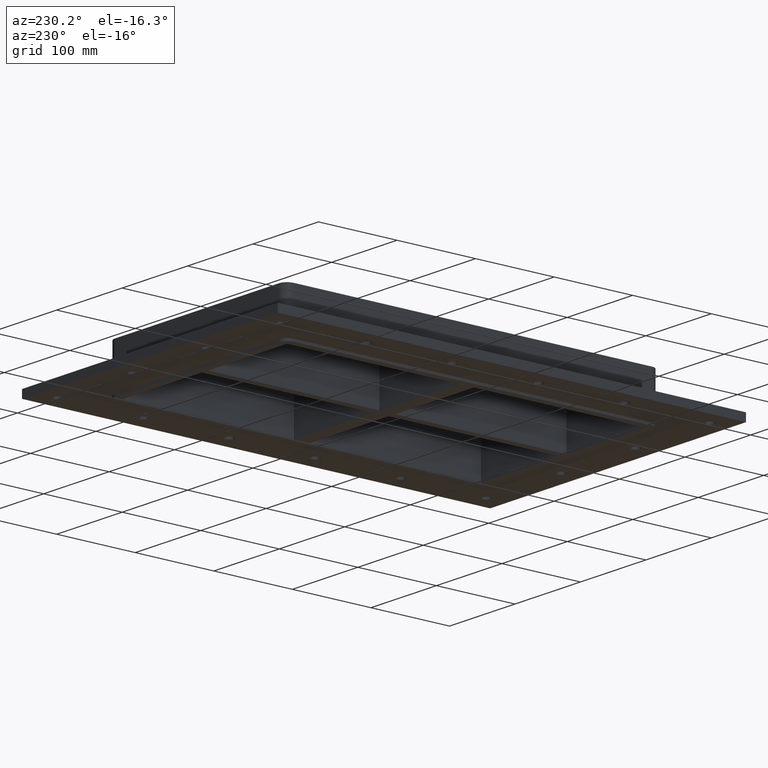
[diagram: clean part render]
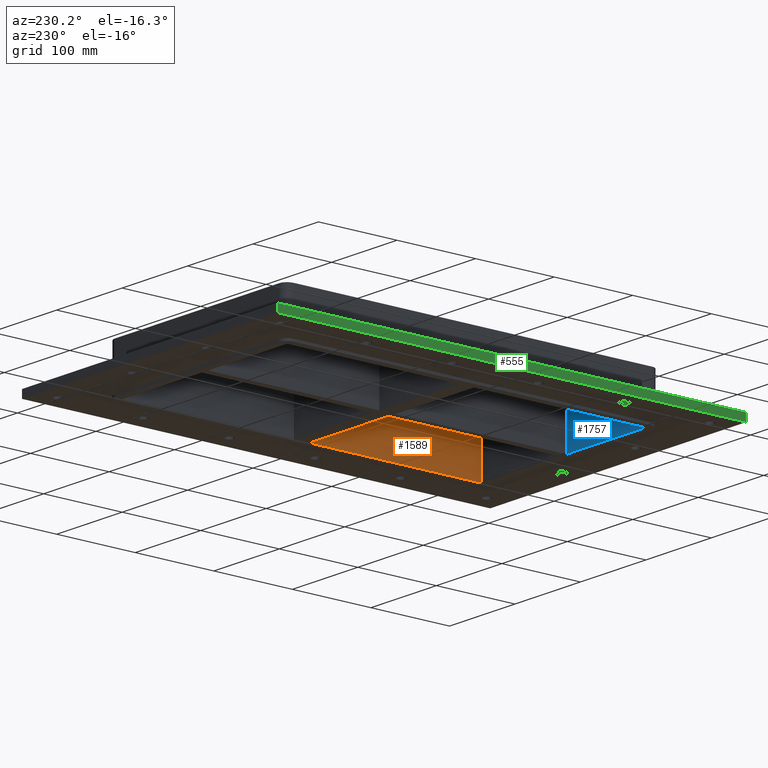
[diagram: same view with three faces highlighted in distinct colors, each labeled with its STEP entity id]
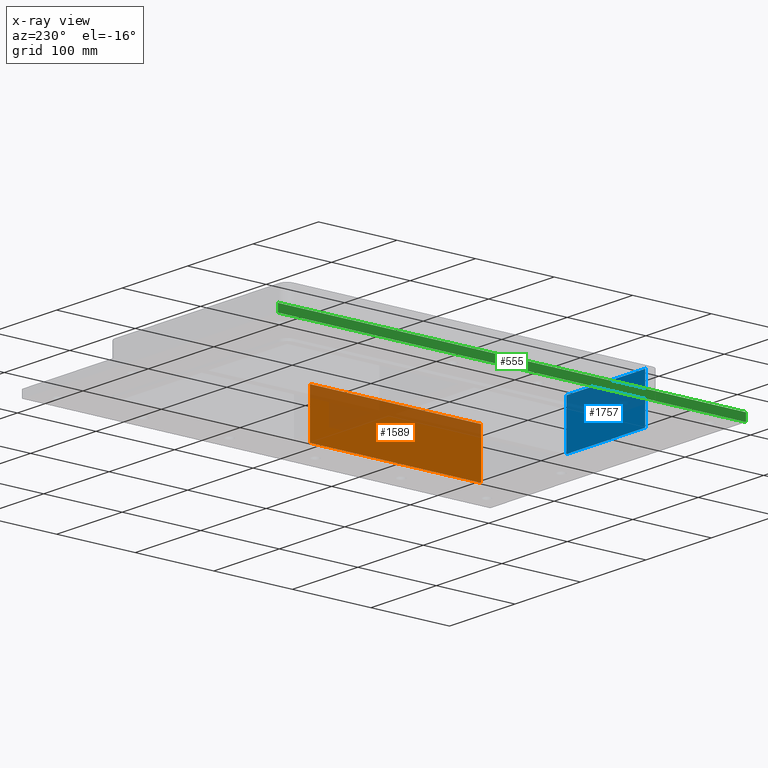
[diagram: x-ray of the same camera — body ghosted, the three highlighted faces saturated]
A machine part, auxiliary view with three faces highlighted in distinct colors.
The next image is the same camera in x-ray (body ghosted, the three faces saturated) — at least one of them is partly hidden behind the body in this view.
Their STEP definitions:

[orange] entity #1589 — the highlighted planar face has unit normal (1, 0, 0).
#1214=CARTESIAN_POINT('',(125.5000000000001,-228.00000000000006,-30.0));
#1215=VERTEX_POINT('',#1214);
#1222=CARTESIAN_POINT('',(125.50000000000006,-10.000000000000036,-30.0));
#1223=VERTEX_POINT('',#1222);
#1224=CARTESIAN_POINT('',(125.5000000000001,-228.00000000000006,-30.0));
#1225=DIRECTION('',(0.0,1.0,0.0));
#1226=VECTOR('',#1225,218.00000000000003);
#1227=LINE('',#1224,#1226);
#1228=EDGE_CURVE('',#1215,#1223,#1227,.T.);
#1549=CARTESIAN_POINT('',(125.5000000000001,-228.00000000000006,30.0));
#1550=VERTEX_POINT('',#1549);
#1557=CARTESIAN_POINT('',(125.5000000000001,-228.00000000000006,30.0));
#1558=DIRECTION('',(0.0,0.0,-1.0));
#1559=VECTOR('',#1558,60.0);
#1560=LINE('',#1557,#1559);
#1561=EDGE_CURVE('',#1550,#1215,#1560,.T.);
#1566=CARTESIAN_POINT('',(125.50000000000006,-10.000000000000036,30.0));
#1567=DIRECTION('',(1.0,0.0,0.0));
#1568=DIRECTION('',(0.0,-1.0,0.0));
#1569=AXIS2_PLACEMENT_3D('',#1566,#1567,#1568);
#1570=PLANE('',#1569);
#1571=ORIENTED_EDGE('',*,*,#1228,.F.);
#1572=ORIENTED_EDGE('',*,*,#1561,.F.);
#1573=CARTESIAN_POINT('',(125.50000000000006,-10.000000000000036,30.0));
#1574=VERTEX_POINT('',#1573);
#1575=CARTESIAN_POINT('',(125.50000000000006,-10.000000000000036,30.0));
#1576=DIRECTION('',(0.0,-1.0,0.0));
#1577=VECTOR('',#1576,218.00000000000003);
#1578=LINE('',#1575,#1577);
#1579=EDGE_CURVE('',#1574,#1550,#1578,.T.);
#1580=ORIENTED_EDGE('',*,*,#1579,.F.);
#1581=CARTESIAN_POINT('',(125.50000000000006,-10.000000000000036,30.0));
#1582=DIRECTION('',(0.0,0.0,-1.0));
#1583=VECTOR('',#1582,60.0);
#1584=LINE('',#1581,#1583);
#1585=EDGE_CURVE('',#1574,#1223,#1584,.T.);
#1586=ORIENTED_EDGE('',*,*,#1585,.T.);
#1587=EDGE_LOOP('',(#1571,#1572,#1580,#1586));
#1588=FACE_OUTER_BOUND('',#1587,.T.);
#1589=ADVANCED_FACE('',(#1588),#1570,.F.);

[blue] entity #1757 — the highlighted planar face has unit normal (0, -1, 0).
#1272=CARTESIAN_POINT('',(-4.999999999999911,-228.00000000000006,-30.0));
#1273=VERTEX_POINT('',#1272);
#1290=CARTESIAN_POINT('',(-125.49999999999991,-228.00000000000011,-30.0));
#1291=VERTEX_POINT('',#1290);
#1298=CARTESIAN_POINT('',(-125.49999999999991,-228.00000000000014,-30.0));
#1299=DIRECTION('',(1.0,0.0,0.0));
#1300=VECTOR('',#1299,120.5);
#1301=LINE('',#1298,#1300);
#1302=EDGE_CURVE('',#1291,#1273,#1301,.T.);
#1717=CARTESIAN_POINT('',(-125.49999999999991,-228.00000000000011,30.0));
#1718=VERTEX_POINT('',#1717);
#1725=CARTESIAN_POINT('',(-125.49999999999991,-228.00000000000011,30.0));
#1726=DIRECTION('',(0.0,0.0,-1.0));
#1727=VECTOR('',#1726,60.0);
#1728=LINE('',#1725,#1727);
#1729=EDGE_CURVE('',#1718,#1291,#1728,.T.);
#1734=CARTESIAN_POINT('',(-4.999999999999911,-228.00000000000006,30.0));
#1735=DIRECTION('',(0.0,-1.0,0.0));
#1736=DIRECTION('',(-1.0,0.0,0.0));
#1737=AXIS2_PLACEMENT_3D('',#1734,#1735,#1736);
#1738=PLANE('',#1737);
#1739=ORIENTED_EDGE('',*,*,#1302,.F.);
#1740=ORIENTED_EDGE('',*,*,#1729,.F.);
#1741=CARTESIAN_POINT('',(-4.999999999999911,-228.00000000000006,30.0));
#1742=VERTEX_POINT('',#1741);
#1743=CARTESIAN_POINT('',(-4.999999999999911,-228.00000000000006,30.0));
#1744=DIRECTION('',(-1.0,0.0,0.0));
#1745=VECTOR('',#1744,120.5);
#1746=LINE('',#1743,#1745);
#1747=EDGE_CURVE('',#1742,#1718,#1746,.T.);
#1748=ORIENTED_EDGE('',*,*,#1747,.F.);
#1749=CARTESIAN_POINT('',(-4.999999999999911,-228.00000000000006,30.0));
#1750=DIRECTION('',(0.0,0.0,-1.0));
#1751=VECTOR('',#1750,60.0);
#1752=LINE('',#1749,#1751);
#1753=EDGE_CURVE('',#1742,#1273,#1752,.T.);
#1754=ORIENTED_EDGE('',*,*,#1753,.T.);
#1755=EDGE_LOOP('',(#1739,#1740,#1748,#1754));
#1756=FACE_OUTER_BOUND('',#1755,.T.);
#1757=ADVANCED_FACE('',(#1756),#1738,.F.);

[green] entity #555 — the highlighted planar face has unit normal (-1, 0, 0).
#516=CARTESIAN_POINT('',(-195.50000000000009,298.0,-27.0));
#517=DIRECTION('',(-1.0,0.0,0.0));
#518=DIRECTION('',(0.0,-1.0,0.0));
#519=AXIS2_PLACEMENT_3D('',#516,#517,#518);
#520=PLANE('',#519);
#521=CARTESIAN_POINT('',(-195.49999999999997,-298.00000000000006,-27.0));
#522=VERTEX_POINT('',#521);
#523=CARTESIAN_POINT('',(-195.50000000000009,298.0,-27.0));
#524=VERTEX_POINT('',#523);
#525=CARTESIAN_POINT('',(-195.49999999999997,-298.00000000000006,-27.0));
#526=DIRECTION('',(0.0,1.0,0.0));
#527=VECTOR('',#526,596.00000000000011);
#528=LINE('',#525,#527);
#529=EDGE_CURVE('',#522,#524,#528,.T.);
#530=ORIENTED_EDGE('',*,*,#529,.F.);
#531=CARTESIAN_POINT('',(-195.49999999999997,-298.00000000000006,-17.0));
#532=VERTEX_POINT('',#531);
#533=CARTESIAN_POINT('',(-195.49999999999997,-298.00000000000006,-27.0));
#534=DIRECTION('',(0.0,0.0,1.0));
#535=VECTOR('',#534,10.0);
#536=LINE('',#533,#535);
#537=EDGE_CURVE('',#522,#532,#536,.T.);
#538=ORIENTED_EDGE('',*,*,#537,.T.);
#539=CARTESIAN_POINT('',(-195.50000000000006,297.99999999999994,-17.0));
#540=VERTEX_POINT('',#539);
#541=CARTESIAN_POINT('',(-195.50000000000009,298.00000000000006,-17.0));
#542=DIRECTION('',(0.0,-1.0,0.0));
#543=VECTOR('',#542,596.00000000000011);
#544=LINE('',#541,#543);
#545=EDGE_CURVE('',#540,#532,#544,.T.);
#546=ORIENTED_EDGE('',*,*,#545,.F.);
#547=CARTESIAN_POINT('',(-195.50000000000009,298.0,-27.0));
#548=DIRECTION('',(0.0,0.0,1.0));
#549=VECTOR('',#548,10.0);
#550=LINE('',#547,#549);
#551=EDGE_CURVE('',#524,#540,#550,.T.);
#552=ORIENTED_EDGE('',*,*,#551,.F.);
#553=EDGE_LOOP('',(#530,#538,#546,#552));
#554=FACE_OUTER_BOUND('',#553,.T.);
#555=ADVANCED_FACE('',(#554),#520,.T.);